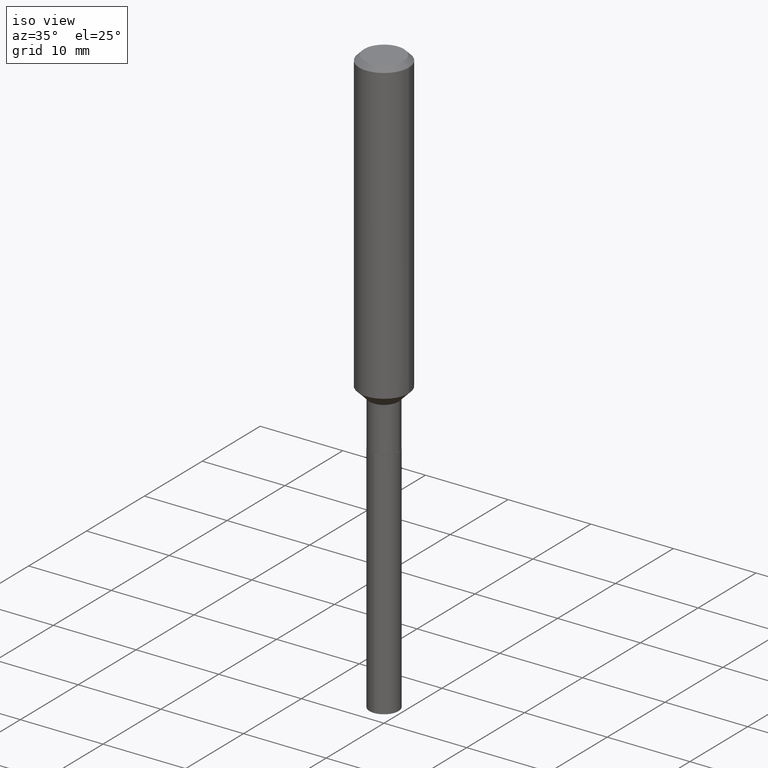
[diagram: clean part render]
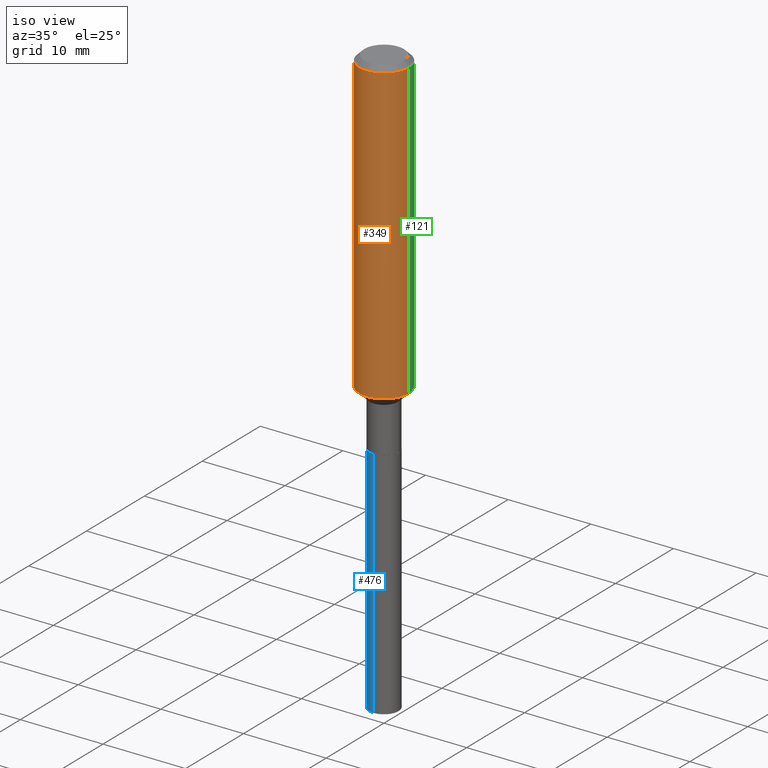
[diagram: same view with three faces highlighted in distinct colors, each labeled with its STEP entity id]
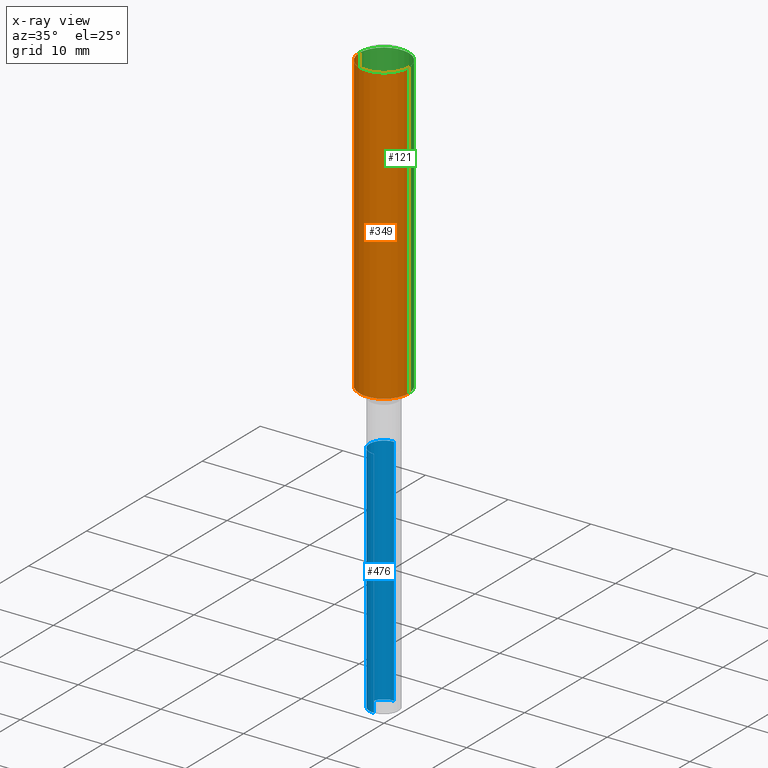
[diagram: x-ray of the same camera — body ghosted, the three highlighted faces saturated]
A machine part, iso view with three faces highlighted in distinct colors.
The next image is the same camera in x-ray (body ghosted, the three faces saturated) — at least one of them is partly hidden behind the body in this view.
Their STEP definitions:

[orange] entity #349 — the highlighted cylindrical surface (edge-blend (fillet) strip) has radius 2.9997 mm, axis along (-0, 0, 1).
#2 = CIRCLE ( 'NONE', #484, 0.1180999999999999966 ) ;
#11 = CARTESIAN_POINT ( 'NONE',  ( 3.487483064500622693E-29, -4.979201537324209694E-15, -1.426099999999999923 ) ) ;
#29 = VERTEX_POINT ( 'NONE', #490 ) ;
#38 = CARTESIAN_POINT ( 'NONE',  ( 0.1181000000000001632, -5.803889429558959534E-15, -1.426099999999999923 ) ) ;
#64 = CARTESIAN_POINT ( 'NONE',  ( 5.776197320209328408E-31, -8.246878922347560526E-17, -0.02362000000000014435 ) ) ;
#68 = EDGE_LOOP ( 'NONE', ( #168, #396, #96, #120 ) ) ;
#78 = CIRCLE ( 'NONE', #197, 0.1181000000000001632 ) ;
#96 = ORIENTED_EDGE ( 'NONE', *, *, #297, .T. ) ;
#120 = ORIENTED_EDGE ( 'NONE', *, *, #234, .F. ) ;
#132 = DIRECTION ( 'NONE',  ( 1.000000000000000000, -6.982962677686266711E-15, 0.000000000000000000 ) ) ;
#141 = CARTESIAN_POINT ( 'NONE',  ( 0.1180999999999999966, -9.071566814582237199E-16, -0.02362000000000014435 ) ) ;
#155 = DIRECTION ( 'NONE',  ( 1.000000000000000000, -6.982962677686270655E-15, 0.000000000000000000 ) ) ;
#167 = DIRECTION ( 'NONE',  ( -2.445468806185136877E-29, 3.491481338843145188E-15, 1.000000000000000000 ) ) ;
#168 = ORIENTED_EDGE ( 'NONE', *, *, #311, .F. ) ;
#192 = DIRECTION ( 'NONE',  ( -2.445468806185136597E-29, 3.491481338843145583E-15, 1.000000000000000000 ) ) ;
#197 = AXIS2_PLACEMENT_3D ( 'NONE', #11, #192, #155 ) ;
#205 = EDGE_CURVE ( 'NONE', #29, #404, #78, .T. ) ;
#206 = CARTESIAN_POINT ( 'NONE',  ( -0.1181000000000000799, 8.391509709326788873E-16, -5.809262341591047988E-30 ) ) ;
#233 = AXIS2_PLACEMENT_3D ( 'NONE', #362, #398, #253 ) ;
#234 = EDGE_CURVE ( 'NONE', #430, #486, #2, .T. ) ;
#244 = LINE ( 'NONE', #206, #314 ) ;
#250 = VECTOR ( 'NONE', #403, 39.37007874015748143 ) ;
#253 = DIRECTION ( 'NONE',  ( 1.000000000000000000, -6.982962677686266711E-15, 4.876176775795936353E-29 ) ) ;
#266 = CARTESIAN_POINT ( 'NONE',  ( -0.1180999999999999966, -1.691684192341163195E-15, -0.02362000000000014435 ) ) ;
#293 = CARTESIAN_POINT ( 'NONE',  ( 0.1181000000000000799, -8.246878922347486570E-16, 5.758764772215004644E-30 ) ) ;
#297 = EDGE_CURVE ( 'NONE', #404, #486, #405, .T. ) ;
#311 = EDGE_CURVE ( 'NONE', #29, #430, #244, .T. ) ;
#314 = VECTOR ( 'NONE', #167, 39.37007874015748143 ) ;
#349 = ADVANCED_FACE ( 'NONE', ( #444 ), #358, .T. ) ;
#358 = CYLINDRICAL_SURFACE ( 'NONE', #233, 0.1181000000000000799 ) ;
#359 = DIRECTION ( 'NONE',  ( -2.445468806185136597E-29, 3.491481338843145583E-15, 1.000000000000000000 ) ) ;
#362 = CARTESIAN_POINT ( 'NONE',  ( 0.000000000000000000, 0.000000000000000000, 0.000000000000000000 ) ) ;
#396 = ORIENTED_EDGE ( 'NONE', *, *, #205, .T. ) ;
#398 = DIRECTION ( 'NONE',  ( -2.445468806185136597E-29, 3.491481338843145583E-15, 1.000000000000000000 ) ) ;
#403 = DIRECTION ( 'NONE',  ( -2.445468806185136877E-29, 3.491481338843145188E-15, 1.000000000000000000 ) ) ;
#404 = VERTEX_POINT ( 'NONE', #38 ) ;
#405 = LINE ( 'NONE', #293, #250 ) ;
#430 = VERTEX_POINT ( 'NONE', #266 ) ;
#444 = FACE_OUTER_BOUND ( 'NONE', #68, .T. ) ;
#484 = AXIS2_PLACEMENT_3D ( 'NONE', #64, #359, #132 ) ;
#486 = VERTEX_POINT ( 'NONE', #141 ) ;
#490 = CARTESIAN_POINT ( 'NONE',  ( -0.1181000000000001632, -4.140050566391530708E-15, -1.426099999999999923 ) ) ;

[blue] entity #476 — the highlighted cylindrical surface (edge-blend (fillet) strip) has radius 1.7501 mm, axis along (-0, 0, 1).
#16 = VECTOR ( 'NONE', #270, 39.37007874015748143 ) ;
#22 = DIRECTION ( 'NONE',  ( -2.440414050576406318E-29, 3.498720036573669606E-15, 1.000000000000000000 ) ) ;
#70 = CARTESIAN_POINT ( 'NONE',  ( -4.811261284925152062E-16, -0.06890000000000982838, -2.807459568230130653 ) ) ;
#72 = CARTESIAN_POINT ( 'NONE',  ( 4.895639449387776796E-16, 0.06889999999999020519, -2.807459568230130653 ) ) ;
#89 = EDGE_CURVE ( 'NONE', #473, #223, #449, .T. ) ;
#97 = DIRECTION ( 'NONE',  ( -6.982962677686265922E-15, -1.000000000000000000, 3.964946289788480896E-15 ) ) ;
#105 = EDGE_CURVE ( 'NONE', #401, #200, #258, .T. ) ;
#119 = CARTESIAN_POINT ( 'NONE',  ( -4.811261284925424219E-16, -0.06890000000000591485, -1.692899999999999627 ) ) ;
#130 = ORIENTED_EDGE ( 'NONE', *, *, #269, .T. ) ;
#137 = CIRCLE ( 'NONE', #207, 0.06890000000000000291 ) ;
#139 = EDGE_LOOP ( 'NONE', ( #406, #130, #248, #305 ) ) ;
#160 = DIRECTION ( 'NONE',  ( -6.982962677686265922E-15, -1.000000000000000000, 0.000000000000000000 ) ) ;
#172 = VECTOR ( 'NONE', #178, 39.37007874015748143 ) ;
#178 = DIRECTION ( 'NONE',  ( -2.440414050576406038E-29, 3.498720036573669211E-15, 1.000000000000000000 ) ) ;
#179 = CIRCLE ( 'NONE', #306, 0.06890000000000001679 ) ;
#200 = VERTEX_POINT ( 'NONE', #390 ) ;
#207 = AXIS2_PLACEMENT_3D ( 'NONE', #249, #22, #97 ) ;
#210 = CARTESIAN_POINT ( 'NONE',  ( 6.859920972504001083E-29, -9.810260651849216245E-15, -2.807459568230130653 ) ) ;
#212 = DIRECTION ( 'NONE',  ( -2.440414050576406318E-29, 3.498720036573669606E-15, 1.000000000000000000 ) ) ;
#218 = CYLINDRICAL_SURFACE ( 'NONE', #450, 0.06890000000000001679 ) ;
#221 = DIRECTION ( 'NONE',  ( -2.440414050576406318E-29, 3.498720036573669606E-15, 1.000000000000000000 ) ) ;
#223 = VERTEX_POINT ( 'NONE', #119 ) ;
#228 = EDGE_CURVE ( 'NONE', #200, #223, #137, .T. ) ;
#248 = ORIENTED_EDGE ( 'NONE', *, *, #89, .T. ) ;
#249 = CARTESIAN_POINT ( 'NONE',  ( 4.139934141990817236E-29, -5.910728758527560286E-15, -1.692899999999999849 ) ) ;
#258 = LINE ( 'NONE', #375, #172 ) ;
#269 = EDGE_CURVE ( 'NONE', #401, #473, #179, .T. ) ;
#270 = DIRECTION ( 'NONE',  ( -2.440414050576406038E-29, 3.498720036573669211E-15, 1.000000000000000000 ) ) ;
#300 = CARTESIAN_POINT ( 'NONE',  ( 4.139934141990817236E-29, -5.910728758527560286E-15, -1.692899999999999849 ) ) ;
#305 = ORIENTED_EDGE ( 'NONE', *, *, #228, .F. ) ;
#306 = AXIS2_PLACEMENT_3D ( 'NONE', #210, #212, #160 ) ;
#342 = FACE_OUTER_BOUND ( 'NONE', #139, .T. ) ;
#344 = CARTESIAN_POINT ( 'NONE',  ( -4.811261284925424219E-16, -0.06890000000000592872, -1.692899999999999627 ) ) ;
#375 = CARTESIAN_POINT ( 'NONE',  ( 4.895639449387504639E-16, 0.06889999999999410485, -1.692900000000000071 ) ) ;
#390 = CARTESIAN_POINT ( 'NONE',  ( 4.895639449387778768E-16, 0.06889999999999410485, -1.692900000000000071 ) ) ;
#401 = VERTEX_POINT ( 'NONE', #72 ) ;
#406 = ORIENTED_EDGE ( 'NONE', *, *, #105, .F. ) ;
#412 = DIRECTION ( 'NONE',  ( -6.982962677686265922E-15, -1.000000000000000000, 3.964946289788480107E-15 ) ) ;
#449 = LINE ( 'NONE', #344, #16 ) ;
#450 = AXIS2_PLACEMENT_3D ( 'NONE', #300, #221, #412 ) ;
#473 = VERTEX_POINT ( 'NONE', #70 ) ;
#476 = ADVANCED_FACE ( 'NONE', ( #342 ), #218, .T. ) ;

[green] entity #121 — the highlighted cylindrical surface (edge-blend (fillet) strip) has radius 2.9997 mm, axis along (-0, 0, 1).
#13 = CARTESIAN_POINT ( 'NONE',  ( 0.000000000000000000, 0.000000000000000000, 0.000000000000000000 ) ) ;
#20 = EDGE_CURVE ( 'NONE', #486, #430, #90, .T. ) ;
#29 = VERTEX_POINT ( 'NONE', #490 ) ;
#38 = CARTESIAN_POINT ( 'NONE',  ( 0.1181000000000001632, -5.803889429558959534E-15, -1.426099999999999923 ) ) ;
#47 = DIRECTION ( 'NONE',  ( 1.000000000000000000, -6.982962677686266711E-15, 4.876176775795936353E-29 ) ) ;
#51 = CYLINDRICAL_SURFACE ( 'NONE', #239, 0.1181000000000000799 ) ;
#75 = EDGE_CURVE ( 'NONE', #404, #29, #442, .T. ) ;
#90 = CIRCLE ( 'NONE', #278, 0.1180999999999999966 ) ;
#100 = EDGE_LOOP ( 'NONE', ( #242, #435, #456, #387 ) ) ;
#112 = DIRECTION ( 'NONE',  ( 1.000000000000000000, -6.982962677686270655E-15, 0.000000000000000000 ) ) ;
#121 = ADVANCED_FACE ( 'NONE', ( #264 ), #51, .T. ) ;
#141 = CARTESIAN_POINT ( 'NONE',  ( 0.1180999999999999966, -9.071566814582237199E-16, -0.02362000000000014435 ) ) ;
#149 = CARTESIAN_POINT ( 'NONE',  ( 3.487483064500622693E-29, -4.979201537324209694E-15, -1.426099999999999923 ) ) ;
#167 = DIRECTION ( 'NONE',  ( -2.445468806185136877E-29, 3.491481338843145188E-15, 1.000000000000000000 ) ) ;
#182 = DIRECTION ( 'NONE',  ( 1.000000000000000000, -6.982962677686266711E-15, 0.000000000000000000 ) ) ;
#194 = DIRECTION ( 'NONE',  ( -2.445468806185136597E-29, 3.491481338843145583E-15, 1.000000000000000000 ) ) ;
#206 = CARTESIAN_POINT ( 'NONE',  ( -0.1181000000000000799, 8.391509709326788873E-16, -5.809262341591047988E-30 ) ) ;
#239 = AXIS2_PLACEMENT_3D ( 'NONE', #13, #194, #47 ) ;
#242 = ORIENTED_EDGE ( 'NONE', *, *, #75, .T. ) ;
#244 = LINE ( 'NONE', #206, #314 ) ;
#250 = VECTOR ( 'NONE', #403, 39.37007874015748143 ) ;
#264 = FACE_OUTER_BOUND ( 'NONE', #100, .T. ) ;
#266 = CARTESIAN_POINT ( 'NONE',  ( -0.1180999999999999966, -1.691684192341163195E-15, -0.02362000000000014435 ) ) ;
#278 = AXIS2_PLACEMENT_3D ( 'NONE', #379, #374, #182 ) ;
#293 = CARTESIAN_POINT ( 'NONE',  ( 0.1181000000000000799, -8.246878922347486570E-16, 5.758764772215004644E-30 ) ) ;
#297 = EDGE_CURVE ( 'NONE', #404, #486, #405, .T. ) ;
#311 = EDGE_CURVE ( 'NONE', #29, #430, #244, .T. ) ;
#314 = VECTOR ( 'NONE', #167, 39.37007874015748143 ) ;
#374 = DIRECTION ( 'NONE',  ( -2.445468806185136597E-29, 3.491481338843145583E-15, 1.000000000000000000 ) ) ;
#379 = CARTESIAN_POINT ( 'NONE',  ( 5.776197320209328408E-31, -8.246878922347560526E-17, -0.02362000000000014435 ) ) ;
#387 = ORIENTED_EDGE ( 'NONE', *, *, #297, .F. ) ;
#393 = AXIS2_PLACEMENT_3D ( 'NONE', #149, #414, #112 ) ;
#403 = DIRECTION ( 'NONE',  ( -2.445468806185136877E-29, 3.491481338843145188E-15, 1.000000000000000000 ) ) ;
#404 = VERTEX_POINT ( 'NONE', #38 ) ;
#405 = LINE ( 'NONE', #293, #250 ) ;
#414 = DIRECTION ( 'NONE',  ( -2.445468806185136597E-29, 3.491481338843145583E-15, 1.000000000000000000 ) ) ;
#430 = VERTEX_POINT ( 'NONE', #266 ) ;
#435 = ORIENTED_EDGE ( 'NONE', *, *, #311, .T. ) ;
#442 = CIRCLE ( 'NONE', #393, 0.1181000000000001632 ) ;
#456 = ORIENTED_EDGE ( 'NONE', *, *, #20, .F. ) ;
#486 = VERTEX_POINT ( 'NONE', #141 ) ;
#490 = CARTESIAN_POINT ( 'NONE',  ( -0.1181000000000001632, -4.140050566391530708E-15, -1.426099999999999923 ) ) ;